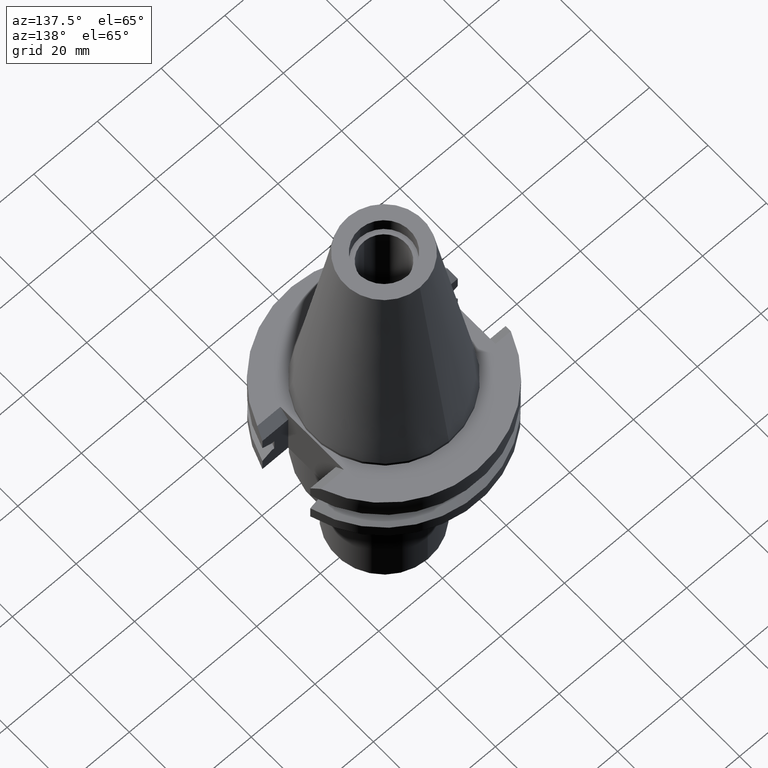
[diagram: clean part render]
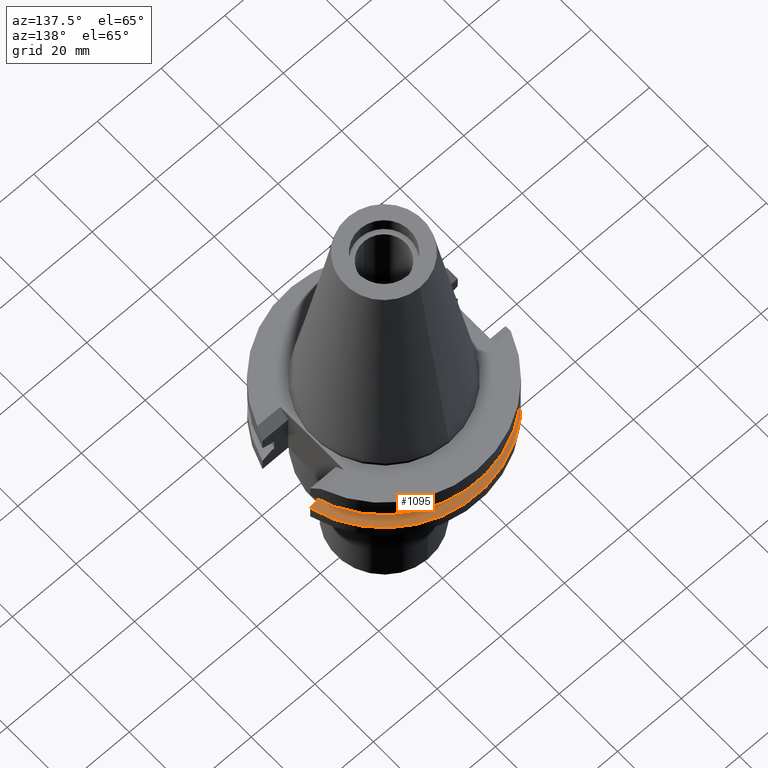
[diagram: same view with one face highlighted and labeled with its STEP entity id]
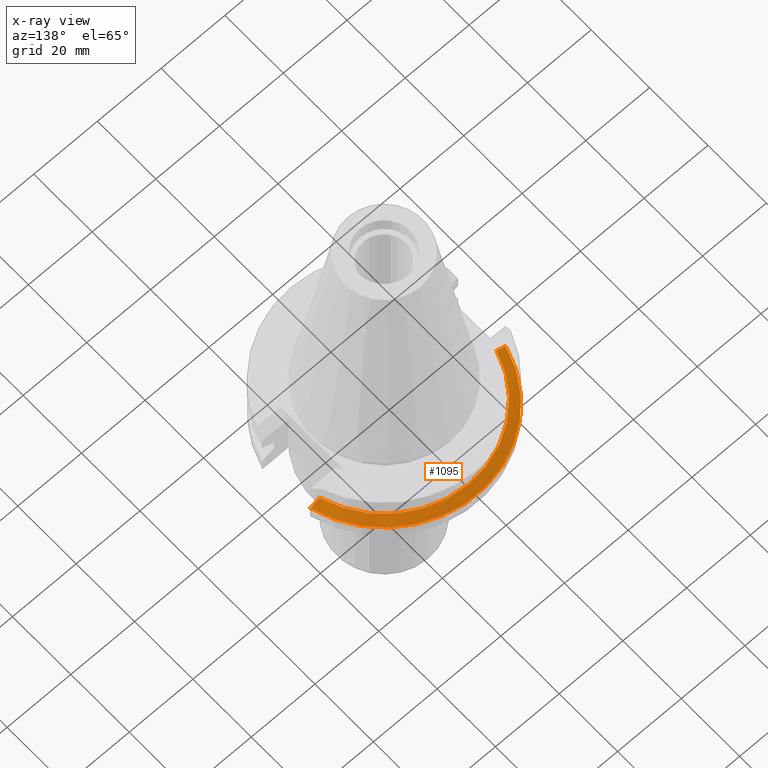
[diagram: x-ray of the same camera — body ghosted, the highlighted face saturated]
A machine part, auxiliary view. The second image highlights one B-rep face of the part: STEP entity #1095.
The next image is the same camera in x-ray: the body ghosted, the highlighted face saturated — about 0% of this face is hidden behind the body in this view.
In plain terms, the highlighted conical surface has half-angle 60 deg.
Its self-contained STEP definition (entity closure, byte-faithful):
#59 = CARTESIAN_POINT ( 'NONE',  ( -27.79398349582000094, 8.190000188446001417, -13.05000000000000071 ) ) ;
#226 = VERTEX_POINT ( 'NONE', #2595 ) ;
#415 = CIRCLE ( 'NONE', #1345, 31.74999999999998579 ) ;
#555 = B_SPLINE_CURVE_WITH_KNOTS ( 'NONE', 3,
 ( #59, #1098, #597, #1349, #1332, #2098 ),
 .UNSPECIFIED., .F., .F.,
 ( 4, 1, 1, 4 ),
 ( 0.0000000000000000000, 0.3333333333333000081, 0.6666666666667000474, 1.000000000000000000 ),
 .UNSPECIFIED. ) ;
#556 = DIRECTION ( 'NONE',  ( -0.9661575315241073270, 0.2579527559055020958, 0.0000000000000000000 ) ) ;
#597 = CARTESIAN_POINT ( 'NONE',  ( -28.73637426792999960, 8.189999992304000997, -13.57236724603999889 ) ) ;
#613 = DIRECTION ( 'NONE',  ( 0.0000000000000000000, 0.0000000000000000000, -1.000000000000000000 ) ) ;
#832 = VERTEX_POINT ( 'NONE', #2358 ) ;
#977 = CARTESIAN_POINT ( 'NONE',  ( 0.0000000000000000000, 1.055021971275999843E-14, -13.85091832103000087 ) ) ;
#1046 = ORIENTED_EDGE ( 'NONE', *, *, #3110, .F. ) ;
#1089 = AXIS2_PLACEMENT_3D ( 'NONE', #1769, #1244, #2809 ) ;
#1095 = ADVANCED_FACE ( 'NONE', ( #2274 ), #3315, .T. ) ;
#1098 = CARTESIAN_POINT ( 'NONE',  ( -28.10639429616999863, 8.190000188446001417, -13.22301539454999997 ) ) ;
#1244 = DIRECTION ( 'NONE',  ( 0.0000000000000000000, 0.0000000000000000000, -1.000000000000000000 ) ) ;
#1321 = EDGE_CURVE ( 'NONE', #832, #2640, #2401, .T. ) ;
#1332 = CARTESIAN_POINT ( 'NONE',  ( -30.34755728222999949, 8.190000601840999650, -14.46891104850000076 ) ) ;
#1345 = AXIS2_PLACEMENT_3D ( 'NONE', #2905, #613, #556 ) ;
#1349 = CARTESIAN_POINT ( 'NONE',  ( -29.69687040127000088, 8.189999744267000281, -14.10633239256000060 ) ) ;
#1503 = EDGE_LOOP ( 'NONE', ( #1046, #2963, #2100, #3166 ) ) ;
#1553 = CARTESIAN_POINT ( 'NONE',  ( 27.79399590375000173, 8.189999364620000222, -13.05000000000000071 ) ) ;
#1673 = CARTESIAN_POINT ( 'NONE',  ( 30.34756341442999883, 8.189999874806000335, -14.46890786042999899 ) ) ;
#1769 = CARTESIAN_POINT ( 'NONE',  ( 0.0000000000000000000, 1.055021971275999843E-14, -13.05000000000000071 ) ) ;
#1787 = CARTESIAN_POINT ( 'NONE',  ( 28.10639452222999779, 8.189999364620000222, -13.22300865266999992 ) ) ;
#1794 = AXIS2_PLACEMENT_3D ( 'NONE', #977, #3303, #3060 ) ;
#1931 = CARTESIAN_POINT ( 'NONE',  ( 30.67550165931999828, 8.189999874806000335, -14.65183552330999994 ) ) ;
#2043 = CARTESIAN_POINT ( 'NONE',  ( 28.73637952835999698, 8.190000279817999385, -13.57237298098000089 ) ) ;
#2098 = CARTESIAN_POINT ( 'NONE',  ( -30.67550162588999640, 8.190000000000997815, -14.65183664206000103 ) ) ;
#2100 = ORIENTED_EDGE ( 'NONE', *, *, #2810, .F. ) ;
#2147 = B_SPLINE_CURVE_WITH_KNOTS ( 'NONE', 3,
 ( #1931, #1673, #2527, #2043, #1787, #2723 ),
 .UNSPECIFIED., .F., .F.,
 ( 4, 1, 1, 4 ),
 ( 0.0000000000000000000, 0.3333333333333000081, 0.6666666666667000474, 1.000000000000000000 ),
 .UNSPECIFIED. ) ;
#2274 = FACE_OUTER_BOUND ( 'NONE', #1503, .T. ) ;
#2314 = CARTESIAN_POINT ( 'NONE',  ( 30.67550165931999828, 8.189999874806000335, -14.65183552330999994 ) ) ;
#2358 = CARTESIAN_POINT ( 'NONE',  ( -27.79398349582000094, 8.190000188446001417, -13.05000000000000071 ) ) ;
#2401 = CIRCLE ( 'NONE', #1089, 28.97553755052999946 ) ;
#2527 = CARTESIAN_POINT ( 'NONE',  ( 29.69687214308000023, 8.189999973706999725, -14.10633600719999947 ) ) ;
#2595 = CARTESIAN_POINT ( 'NONE',  ( -30.67550162588999640, 8.190000000000997815, -14.65183664206000103 ) ) ;
#2640 = VERTEX_POINT ( 'NONE', #1553 ) ;
#2723 = CARTESIAN_POINT ( 'NONE',  ( 27.79399590375000173, 8.189999364620000222, -13.05000000000000071 ) ) ;
#2809 = DIRECTION ( 'NONE',  ( -0.9592224574148938698, 0.2826522195046979880, 0.0000000000000000000 ) ) ;
#2810 = EDGE_CURVE ( 'NONE', #832, #226, #555, .T. ) ;
#2824 = EDGE_CURVE ( 'NONE', #226, #3222, #415, .T. ) ;
#2905 = CARTESIAN_POINT ( 'NONE',  ( 0.0000000000000000000, 1.055021971275999843E-14, -14.65183664206000103 ) ) ;
#2963 = ORIENTED_EDGE ( 'NONE', *, *, #2824, .F. ) ;
#3060 = DIRECTION ( 'NONE',  ( 0.0000000000000000000, -1.000000000000000000, 0.0000000000000000000 ) ) ;
#3110 = EDGE_CURVE ( 'NONE', #3222, #2640, #2147, .T. ) ;
#3166 = ORIENTED_EDGE ( 'NONE', *, *, #1321, .T. ) ;
#3222 = VERTEX_POINT ( 'NONE', #2314 ) ;
#3303 = DIRECTION ( 'NONE',  ( 0.0000000000000000000, 0.0000000000000000000, -1.000000000000000000 ) ) ;
#3315 = CONICAL_SURFACE ( 'NONE', #1794, 30.36276877526999840, 1.047197551196400456 ) ;